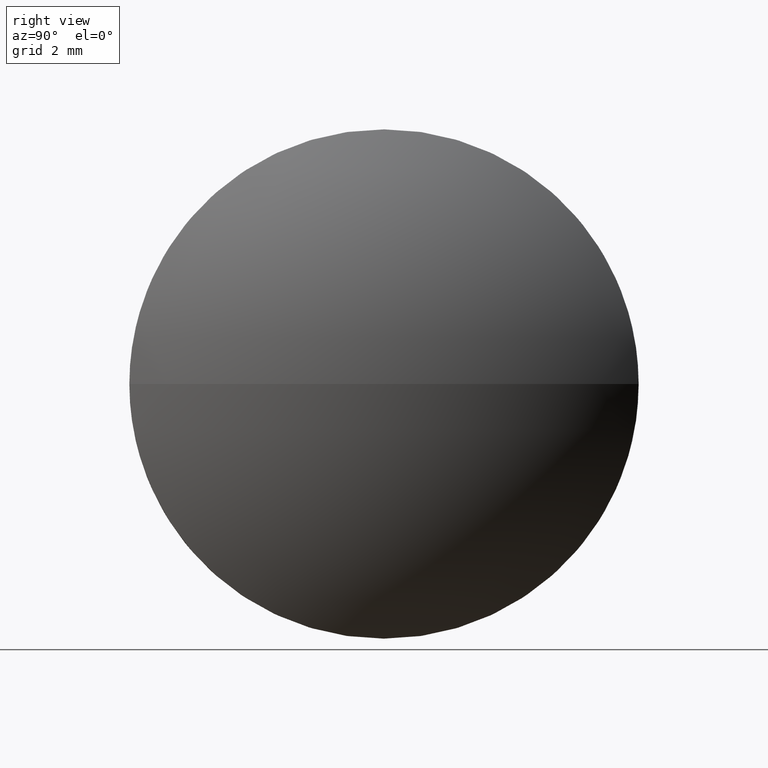
[diagram: clean part render]
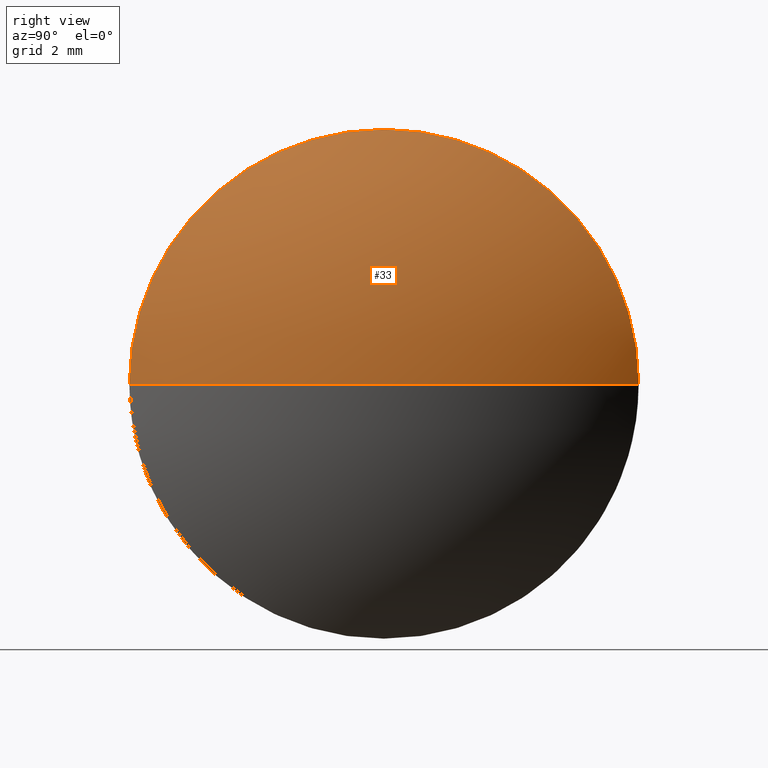
[diagram: same view with one face highlighted and labeled with its STEP entity id]
A machine part, right view. The second image highlights one B-rep face of the part: STEP entity #33.
In plain terms, the highlighted spherical surface has radius 12.9008 mm.
Its self-contained STEP definition (entity closure, byte-faithful):
#7 = CARTESIAN_POINT ( 'NONE',  ( 547.0900761901107200, 147.9861653284031000, 0.0000000000000000000 ) ) ;
#9 = DIRECTION ( 'NONE',  ( 0.0000000000000000000, 0.0000000000000000000, 1.000000000000000000 ) ) ;
#16 = CARTESIAN_POINT ( 'NONE',  ( 549.8700761901106900, 139.9861653284031300, 0.0000000000000000000 ) ) ;
#19 = AXIS2_PLACEMENT_3D ( 'NONE', #46, #89, #9 ) ;
#24 = CIRCLE ( 'NONE', #62, 8.000000000000007100 ) ;
#26 = VERTEX_POINT ( 'NONE', #113 ) ;
#32 = DIRECTION ( 'NONE',  ( 1.000000000000000000, 0.0000000000000000000, 0.0000000000000000000 ) ) ;
#33 = ADVANCED_FACE ( 'NONE', ( #119 ), #77, .T. ) ;
#38 = EDGE_CURVE ( 'NONE', #90, #137, #41, .T. ) ;
#41 = CIRCLE ( 'NONE', #82, 12.90079136690647100 ) ;
#43 = EDGE_CURVE ( 'NONE', #90, #26, #186, .T. ) ;
#46 = CARTESIAN_POINT ( 'NONE',  ( 547.0900761901107200, 139.9861653284031000, 0.0000000000000000000 ) ) ;
#48 = CARTESIAN_POINT ( 'NONE',  ( 547.0900761901107200, 139.9861653284031000, 0.0000000000000000000 ) ) ;
#54 = CIRCLE ( 'NONE', #19, 8.000000000000007100 ) ;
#55 = ORIENTED_EDGE ( 'NONE', *, *, #152, .F. ) ;
#56 = DIRECTION ( 'NONE',  ( 0.0000000000000000000, 1.000000000000000000, 0.0000000000000000000 ) ) ;
#62 = AXIS2_PLACEMENT_3D ( 'NONE', #48, #166, #117 ) ;
#69 = ORIENTED_EDGE ( 'NONE', *, *, #38, .T. ) ;
#75 = CARTESIAN_POINT ( 'NONE',  ( 547.0900761901107200, 139.9861653284031000, 8.000000000000007100 ) ) ;
#77 = SPHERICAL_SURFACE ( 'NONE', #162, 12.90079136690646600 ) ;
#82 = AXIS2_PLACEMENT_3D ( 'NONE', #112, #88, #32 ) ;
#85 = DIRECTION ( 'NONE',  ( 0.0000000000000000000, 1.224646799147353200E-016, -1.000000000000000000 ) ) ;
#88 = DIRECTION ( 'NONE',  ( -0.0000000000000000000, 0.0000000000000000000, 1.000000000000000000 ) ) ;
#89 = DIRECTION ( 'NONE',  ( -1.000000000000000000, -0.0000000000000000000, -0.0000000000000000000 ) ) ;
#90 = VERTEX_POINT ( 'NONE', #16 ) ;
#95 = CARTESIAN_POINT ( 'NONE',  ( 536.9692848232042500, 139.9861653284031300, 0.0000000000000000000 ) ) ;
#112 = CARTESIAN_POINT ( 'NONE',  ( 536.9692848232042500, 139.9861653284031300, 0.0000000000000000000 ) ) ;
#113 = CARTESIAN_POINT ( 'NONE',  ( 547.0900761901107200, 131.9861653284031300, -9.797174393178839500E-016 ) ) ;
#117 = DIRECTION ( 'NONE',  ( 0.0000000000000000000, 0.0000000000000000000, 1.000000000000000000 ) ) ;
#119 = FACE_OUTER_BOUND ( 'NONE', #138, .T. ) ;
#137 = VERTEX_POINT ( 'NONE', #7 ) ;
#138 = EDGE_LOOP ( 'NONE', ( #168, #69, #55, #170 ) ) ;
#139 = EDGE_CURVE ( 'NONE', #26, #151, #54, .T. ) ;
#145 = CARTESIAN_POINT ( 'NONE',  ( 536.9692848232042500, 139.9861653284031300, 0.0000000000000000000 ) ) ;
#151 = VERTEX_POINT ( 'NONE', #75 ) ;
#152 = EDGE_CURVE ( 'NONE', #151, #137, #24, .T. ) ;
#162 = AXIS2_PLACEMENT_3D ( 'NONE', #145, #173, #56 ) ;
#166 = DIRECTION ( 'NONE',  ( -1.000000000000000000, -0.0000000000000000000, -0.0000000000000000000 ) ) ;
#168 = ORIENTED_EDGE ( 'NONE', *, *, #43, .F. ) ;
#170 = ORIENTED_EDGE ( 'NONE', *, *, #139, .F. ) ;
#171 = AXIS2_PLACEMENT_3D ( 'NONE', #95, #85, #174 ) ;
#173 = DIRECTION ( 'NONE',  ( -0.0000000000000000000, 0.0000000000000000000, -1.000000000000000000 ) ) ;
#174 = DIRECTION ( 'NONE',  ( 0.0000000000000000000, 1.000000000000000000, 1.224646799147352700E-016 ) ) ;
#186 = CIRCLE ( 'NONE', #171, 12.90079136690647100 ) ;